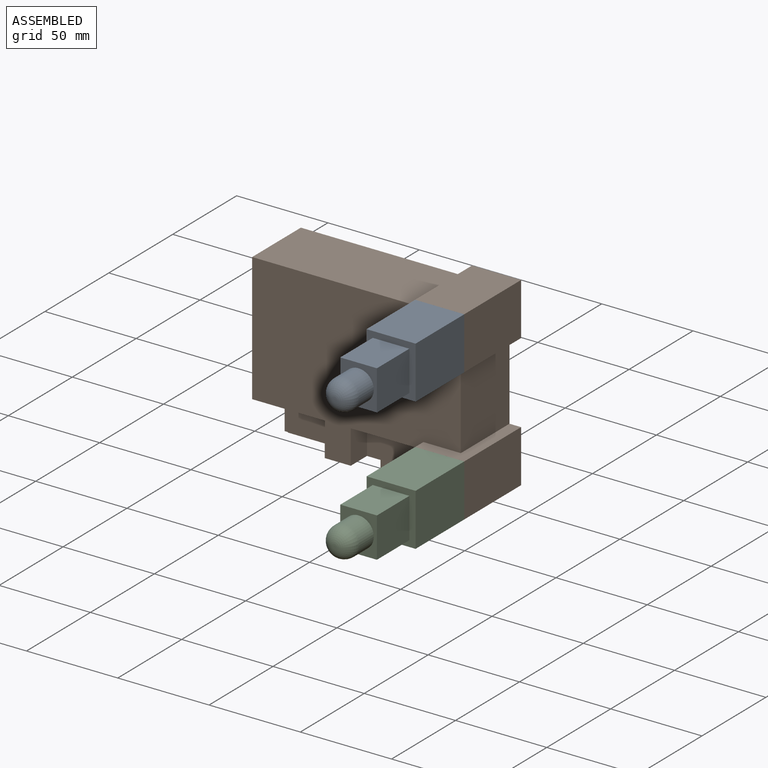
[diagram: assembled view]
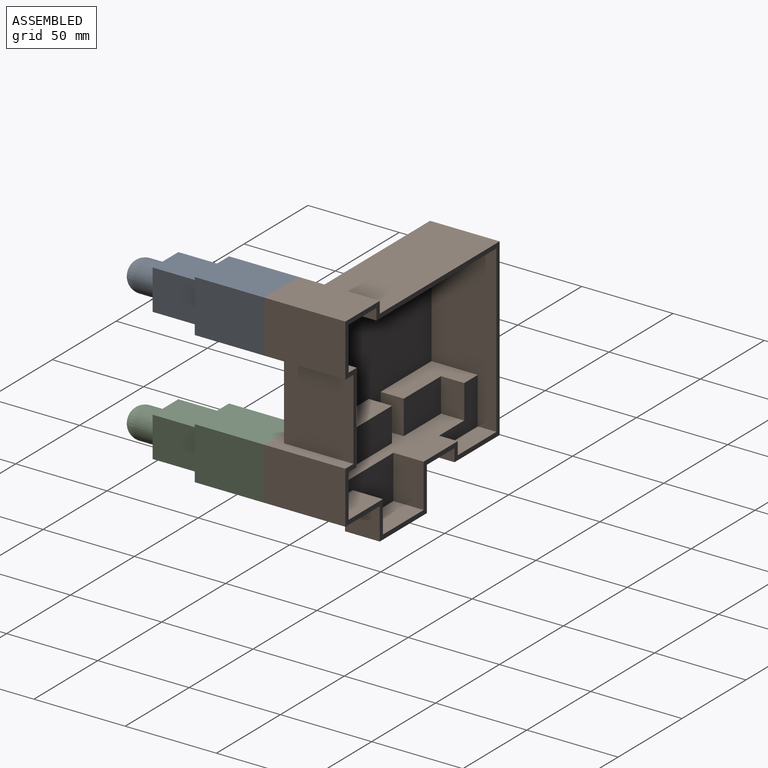
[diagram: assembled view, second angle]
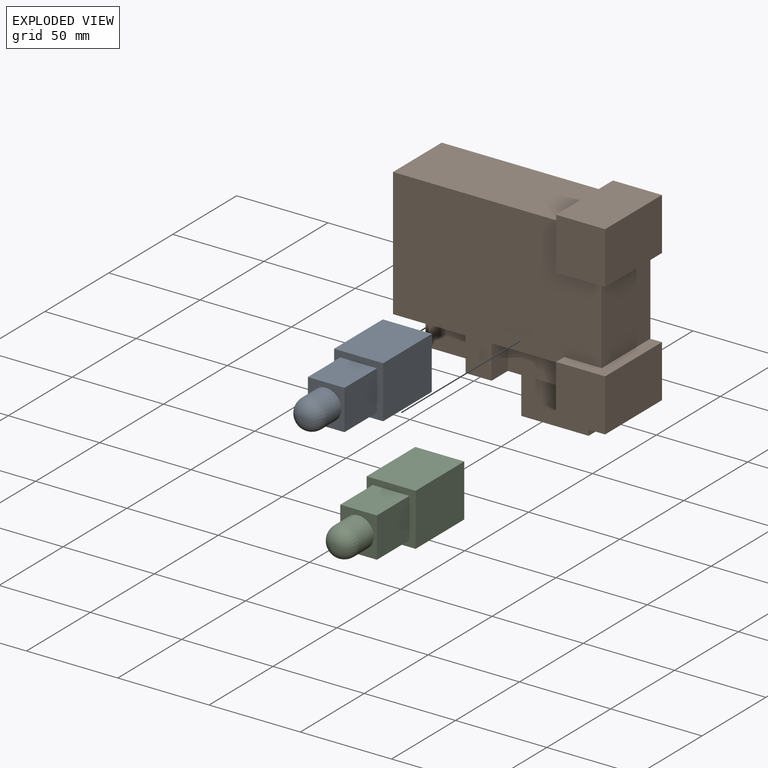
[diagram: exploded view]
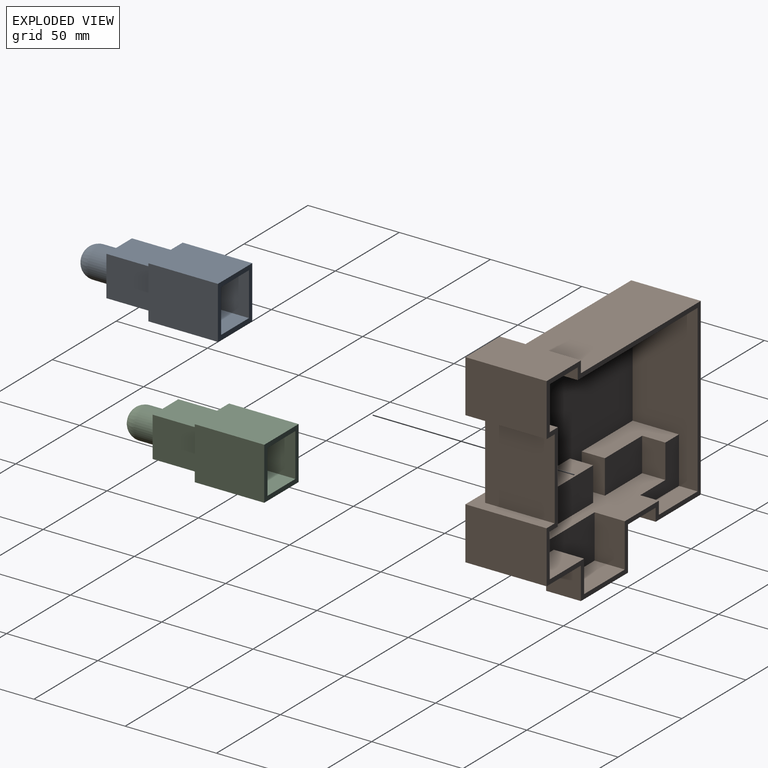
[diagram: exploded view, second angle]
ASSEMBLY  parts=3 mates=2
PART A: 27 faces, bbox 26.8x82.6x28.7 mm
  f0: plane 28.73x26.85mm, normal (0,1,0), area 252.9mm2, adj f2,f3,f4,f5,f15,f16,f17,f18
  f1: plane 28.73x26.85mm, normal (0,-1,0), area 330.9mm2, adj f2,f3,f4,f5,f6,f7,f8,f9
  f2: plane 38.1x26.85mm, normal (0,0,1), area 1022.9mm2, adj f0,f1,f3,f5
  f3: plane 38.1x28.73mm, normal (-1,0,0), area 1094.5mm2, adj f0,f1,f2,f4
  f4: plane 38.1x26.85mm, normal (0,0,-1), area 1022.9mm2, adj f0,f1,f3,f5
  f5: plane 38.1x28.73mm, normal (1,0,0), area 1094.5mm2, adj f0,f1,f2,f4
  f6: plane 25.4x21.95mm, normal (1,0,0), area 557.4mm2, adj f1,f7,f9,f10
  f7: plane 25.4x20.07mm, normal (0,0,1), area 509.7mm2, adj f1,f6,f8,f10
  f8: plane 25.4x21.95mm, normal (-1,0,0), area 557.4mm2, adj f1,f7,f9,f10
  f9: plane 25.4x20.07mm, normal (0,0,-1), area 509.7mm2, adj f1,f6,f8,f10
  f10: plane 21.95x20.07mm, normal (0,-1,0), area 222.9mm2, adj f6,f7,f8,f9,f11
  f11: cylinder r=8.32mm len=16.64mm, axis (0,1,0), area 597.6mm2, adj f10,f13
  f12: plane 1.4x1.4mm, normal (0,-1,0), area 1.5mm2, adj f13
  f13: torus R=0.7mm, axis (0,-1,0), area 417.5mm2, adj f11,f12
  f14: plane 23.73x21.85mm, normal (0,1,0), area 263.1mm2, adj f15,f16,f17,f18,f19,f20,f21,f22
  f15: plane 35.6x21.85mm, normal (0,0,-1), area 777.8mm2, adj f0,f14,f16,f18
  f16: plane 35.6x23.73mm, normal (1,0,0), area 844.7mm2, adj f0,f14,f15,f17
  f17: plane 35.6x21.85mm, normal (0,0,1), area 777.8mm2, adj f0,f14,f16,f18
  f18: plane 35.6x23.73mm, normal (-1,0,0), area 844.7mm2, adj f0,f14,f15,f17
  f19: plane 25.4x16.95mm, normal (-1,0,0), area 430.4mm2, adj f14,f20,f22,f23
  f20: plane 25.4x15.07mm, normal (0,0,-1), area 382.7mm2, adj f14,f19,f21,f23
  f21: plane 25.4x16.95mm, normal (1,0,0), area 430.4mm2, adj f14,f20,f22,f23
  f22: plane 25.4x15.07mm, normal (0,0,1), area 382.7mm2, adj f14,f19,f21,f23
  f23: plane 16.95x15.07mm, normal (0,1,0), area 148.9mm2, adj f19,f20,f21,f22,f24
  f24: cylinder r=5.82mm len=13.93mm, axis (0,1,0), area 509.5mm2, adj f23,f26
  f25: plane 1.4x1.4mm, normal (0,1,0), area 1.5mm2, adj f26
  f26: torus R=0.7mm, axis (0,-1,0), area 200.1mm2, adj f24,f25
PART B: 59 faces, bbox 120.7x44.5x119.2 mm
  f0: plane 83.15x38.1mm, normal (0,0,-1), area 1277.3mm2, adj f1,f2,f8,f9,f11,f20,f21,f22
  f1: plane 18.53x12.7mm, normal (-1,0,0), area 235.3mm2, adj f0,f7,f8,f22
  f2: plane 18.53x12.7mm, normal (1,0,0), area 235.3mm2, adj f0,f3,f8,f20
  f3: plane 39.8x12.7mm, normal (0,0,-1), area 505.4mm2, adj f2,f8,f11,f20
  f4: plane 44.13x38.1mm, normal (1,0,0), area 1681.4mm2, adj f8,f9,f10,f16
  f5: plane 93.81x38.1mm, normal (0,0,1), area 3574mm2, adj f6,f8,f9,f15
  f6: plane 95.88x38.1mm, normal (-1,0,0), area 3005.1mm2, adj f5,f7,f8,f9,f28,f29
  f7: plane 39.8x25.4mm, normal (0,0,-1), area 640.7mm2, adj f1,f6,f8,f21,f22,f29
  f8: plane 114.3x88.9mm, normal (0,-1,0), area 7769.1mm2, adj f0,f1,f2,f3,f4,f5,f6,f7
  f9: plane 120.65x119.16mm, normal (0,1,0), area 1240.7mm2, adj f0,f4,f5,f6,f10,f12,f13,f15
  f10: plane 44.45x26.84mm, normal (0,0,1), area 412.4mm2, adj f4,f8,f9,f11,f13,f14
  f11: plane 28.73x25.4mm, normal (-1,0,0), area 538.7mm2, adj f0,f3,f8,f10,f12,f14,f20,f26
  f12: plane 44.45x26.84mm, normal (0,0,-1), area 1193.2mm2, adj f9,f11,f13,f14,f23
  f13: plane 44.45x28.73mm, normal (1,0,0), area 1277.2mm2, adj f9,f10,f12,f14
  f14: plane 28.73x26.84mm, normal (0,-1,0), area 771.3mm2, adj f10,f11,f12,f13
  f15: plane 44.45x28.73mm, normal (-1,0,0), area 424.4mm2, adj f5,f8,f9,f16,f18,f19
  f16: plane 44.45x26.84mm, normal (0,0,-1), area 412.4mm2, adj f4,f8,f9,f15,f17,f19
  f17: plane 44.45x28.73mm, normal (1,0,0), area 1277.2mm2, adj f9,f16,f18,f19
  f18: plane 44.45x26.84mm, normal (0,0,1), area 1193.2mm2, adj f9,f15,f17,f19
  f19: plane 28.73x26.84mm, normal (0,-1,0), area 771.3mm2, adj f15,f16,f17,f18
  f20: plane 39.8x18.53mm, normal (0,-1,0), area 737.3mm2, adj f0,f2,f3,f11
  f21: plane 18.53x12.7mm, normal (-1,0,0), area 235.3mm2, adj f0,f7,f22,f29
  f22: plane 29.15x18.53mm, normal (0,-1,0), area 540mm2, adj f0,f1,f7,f21
  f23: plane 19.05x17.56mm, normal (1,0,0), area 334.5mm2, adj f9,f12,f25,f26
  f24: plane 23.91x19.05mm, normal (-1,0,0), area 455.4mm2, adj f0,f9,f25,f26
  f25: plane 36.86x19.05mm, normal (0,0,-1), area 702.2mm2, adj f9,f23,f24,f26
  f26: plane 36.86x23.91mm, normal (0,-1,0), area 881.3mm2, adj f0,f11,f23,f24,f25
  f27: plane 12.7x6.98mm, normal (1,0,0), area 88.6mm2, adj f0,f9,f28,f29
  f28: plane 35.3x12.7mm, normal (0,0,-1), area 448.3mm2, adj f6,f9,f27,f29
  f29: plane 35.3x25.5mm, normal (0,-1,0), area 443.6mm2, adj f0,f6,f7,f21,f27,f28
  f30: plane 83.15x35.6mm, normal (0,0,1), area 1210.7mm2, adj f9,f31,f32,f38,f40,f49,f50,f51
  f31: plane 18.53x12.7mm, normal (1,0,0), area 235.3mm2, adj f30,f37,f38,f51
  f32: plane 18.53x12.7mm, normal (-1,0,0), area 235.3mm2, adj f30,f33,f38,f49
  f33: plane 44.8x12.7mm, normal (0,0,1), area 568.9mm2, adj f32,f38,f40,f49
  f34: plane 49.13x35.6mm, normal (-1,0,0), area 1749.1mm2, adj f9,f38,f39,f45
  f35: plane 93.81x35.6mm, normal (0,0,-1), area 3339.5mm2, adj f9,f36,f38,f44
  f36: plane 90.88x35.6mm, normal (1,0,0), area 2587.4mm2, adj f9,f35,f37,f38,f57,f58
  f37: plane 39.8x25.4mm, normal (0,0,1), area 640.7mm2, adj f31,f36,f38,f50,f51,f58
  f38: plane 109.3x83.9mm, normal (0,1,0), area 7064.3mm2, adj f30,f31,f32,f33,f34,f35,f36,f37
  f39: plane 41.95x21.84mm, normal (0,0,-1), area 364.8mm2, adj f9,f34,f38,f40,f42,f43
  f40: plane 25.4x24.88mm, normal (1,0,0), area 507mm2, adj f30,f33,f38,f39,f41,f43,f49,f55
  f41: plane 41.95x26.84mm, normal (0,0,1), area 999.1mm2, adj f9,f40,f42,f43,f52,f55
  f42: plane 41.95x23.73mm, normal (-1,0,0), area 995.6mm2, adj f9,f39,f41,f43
  f43: plane 23.73x21.84mm, normal (0,1,0), area 518.5mm2, adj f39,f40,f41,f42
  f44: plane 41.95x23.73mm, normal (1,0,0), area 376.8mm2, adj f9,f35,f38,f45,f47,f48
  f45: plane 41.95x21.84mm, normal (0,0,1), area 364.8mm2, adj f9,f34,f38,f44,f46,f48
  f46: plane 41.95x23.73mm, normal (-1,0,0), area 995.6mm2, adj f9,f45,f47,f48
  f47: plane 41.95x21.84mm, normal (0,0,-1), area 916.4mm2, adj f9,f44,f46,f48
  f48: plane 23.73x21.84mm, normal (0,1,0), area 518.5mm2, adj f44,f45,f46,f47
  f49: plane 44.8x18.53mm, normal (0,1,0), area 829.9mm2, adj f30,f32,f33,f40
  f50: plane 18.53x12.7mm, normal (1,0,0), area 235.3mm2, adj f30,f37,f51,f58
  f51: plane 29.15x18.53mm, normal (0,1,0), area 540mm2, adj f30,f31,f37,f50
  f52: plane 17.56x16.55mm, normal (-1,0,0), area 290.6mm2, adj f9,f41,f54,f55
  f53: plane 23.91x16.55mm, normal (1,0,0), area 395.7mm2, adj f9,f30,f54,f55
  f54: plane 31.86x16.55mm, normal (0,0,1), area 527.3mm2, adj f9,f52,f53,f55
  f55: plane 36.86x23.91mm, normal (0,1,0), area 793.5mm2, adj f30,f40,f41,f52,f53,f54
  f56: plane 10.2x6.98mm, normal (-1,0,0), area 71.2mm2, adj f9,f30,f57,f58
  f57: plane 30.3x10.2mm, normal (0,0,1), area 309mm2, adj f9,f36,f56,f58
  f58: plane 30.3x25.5mm, normal (0,1,0), area 408.7mm2, adj f30,f36,f37,f50,f56,f57
PART C: same geometry as A
PLACE A t=(29.51,-9.38,53.55)mm
PLACE B t=(-64.3,35.07,-12.97)mm
PLACE C t=(29.51,-9.38,-19.31)mm
MATE fastened A.f11 <-> B.f19  axis (0,1,0) through (42.93,-9.38,67.92)mm
MATE fastened C.f11 <-> B.f14  axis (0,1,0) through (42.93,-9.38,-4.95)mm
